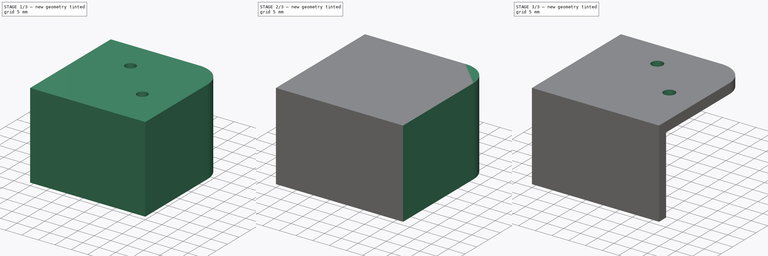
[diagram: build sequence overview — one tinted view per stage of 3, left to right]
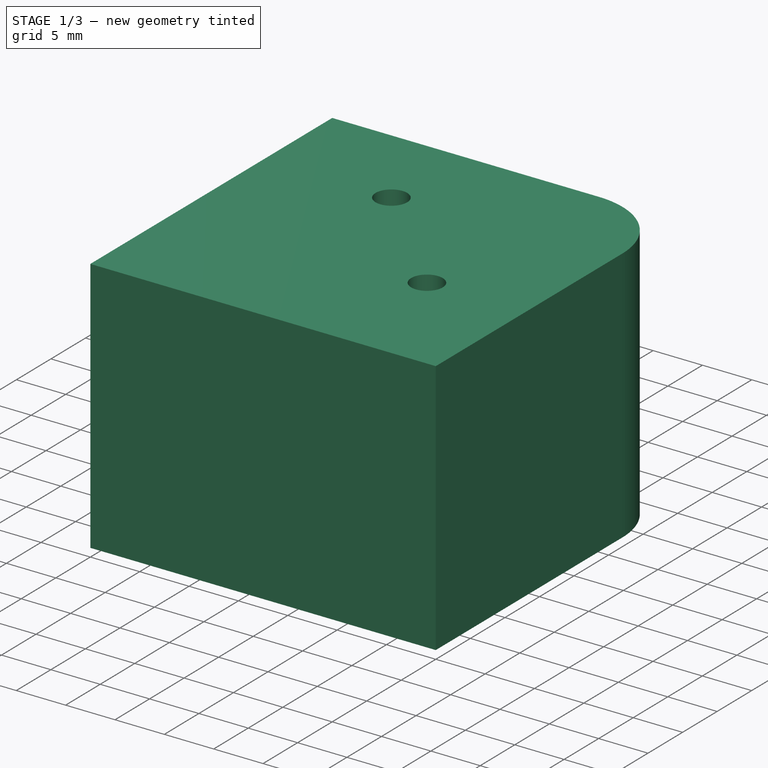
[diagram: stage 1 of 3 — iso view after this stage's code; geometry added in this stage tinted green]
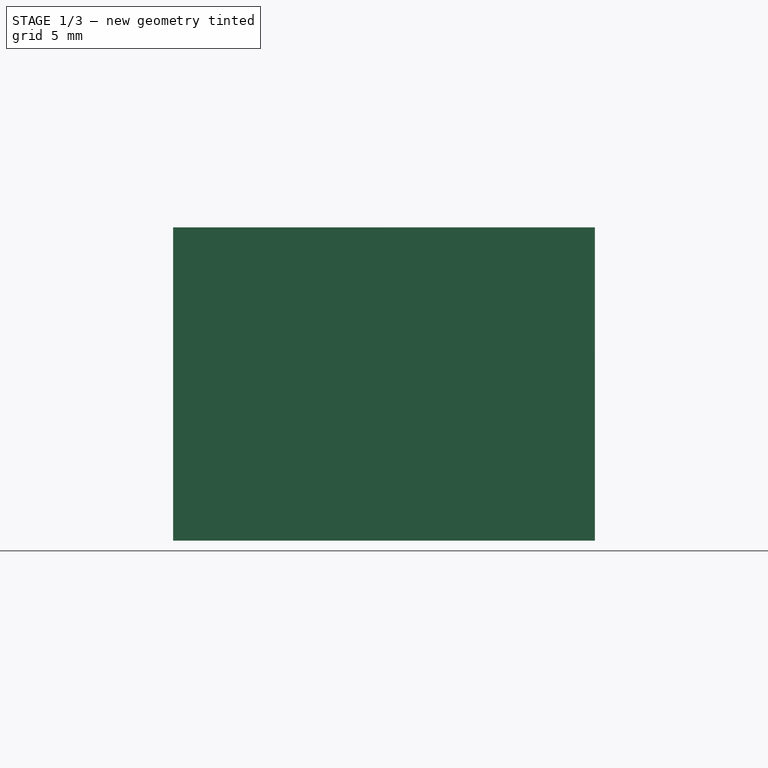
[diagram: stage 1 of 3 — front view after this stage's code; geometry added in this stage tinted green]
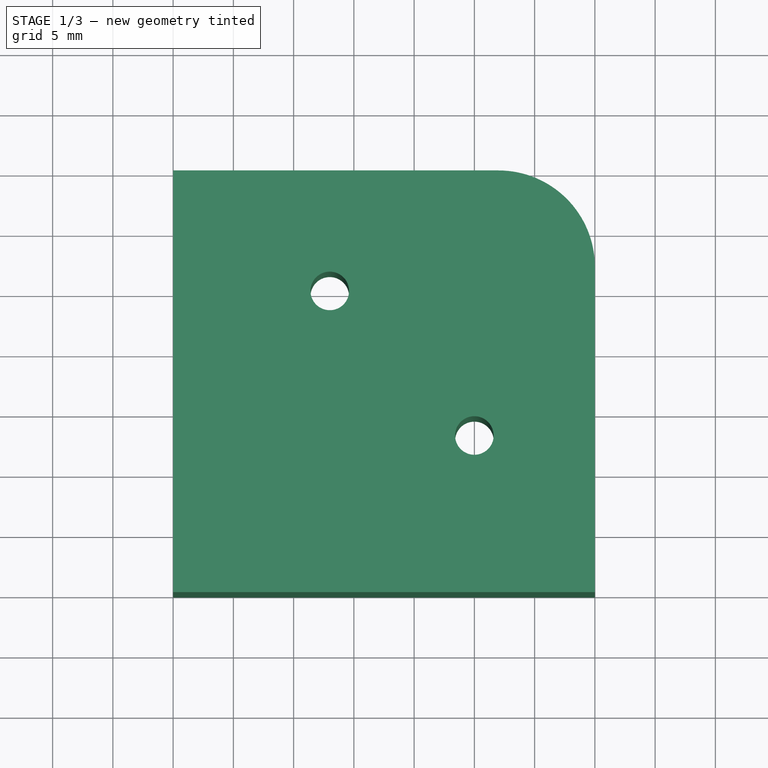
[diagram: stage 1 of 3 — top view after this stage's code; geometry added in this stage tinted green]
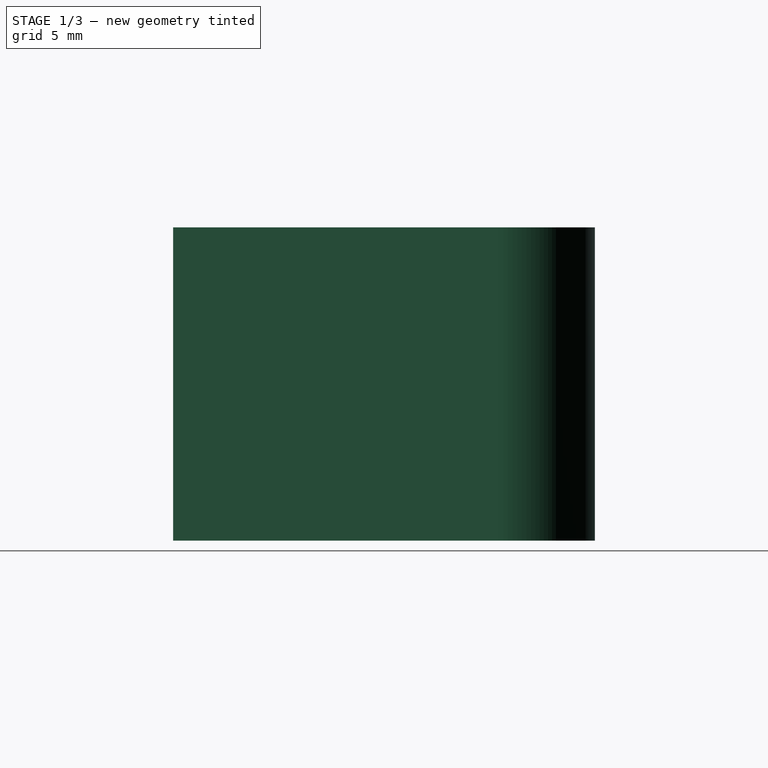
[diagram: stage 1 of 3 — right view after this stage's code; geometry added in this stage tinted green]
FCSTD DOCUMENT  (FreeCAD 0.20R29603 (Git))
Label: GabaritoFurosCantos_BKP
License: All rights reserved
LicenseURL: http://en.wikipedia.org/wiki/All_rights_reserved
objects: Sketcher::SketchObject×5, PartDesign::Pad×3, PartDesign::Body×3, PartDesign::Fillet×2, PartDesign::Pocket×2, Spreadsheet::Sheet×1, PartDesign::Boolean×1, PartDesign::SubShapeBinder×1
note: 24 computed .brp shape members not serialized (recipe doc carries the construction recipe); baked Part::Feature solids carry a one-line shape summary decoded from their .brp

FEATURE [Sketcher::SketchObject] Sketch002
  FullyConstrained = true
  MapMode = 5
  Support = -> [XY_Plane002]
  sketch-geometry (4):
    g0: LineSegment StartX=0 StartY=35 StartZ=0 EndX=35 EndY=35 EndZ=0
    g1: LineSegment StartX=35 StartY=35 StartZ=0 EndX=35 EndY=0 EndZ=0
    g2: LineSegment StartX=35 StartY=0 StartZ=0 EndX=0 EndY=0 EndZ=0
    g3: LineSegment StartX=0 StartY=0 StartZ=0 EndX=0 EndY=35 EndZ=0
  constraints (11):
    c: Coincident(g0,g1)
    c: Coincident(g1,g2)
    c: Coincident(g2,g3)
    c: Coincident(g3,g0)
    c: Horizontal(g2)
    c: Vertical(g1)
    c: DistanceY(g2,g0) = 35
    c: DistanceX(g0,g0) = 35
    c: Coincident(g2,g-1)
    c: Vertical(g3)
    c: Horizontal(g0)
FEATURE [PartDesign::Pad] Pad002
  Direction = (0,0,1)
  Length = 26
  Length2 = 10
  Profile = -> Sketch002
  ReferenceAxis = -> Sketch002 [N_Axis]
  Type = 0
FEATURE [Sketcher::SketchObject] Sketch003
  FullyConstrained = true
  MapMode = 5
  Placement = pos=(0,0,26) rot=(0,0,1;0rad)
  Support = -> [Pad002]
  sketch-geometry (2):
    g0: Circle CenterX=25 CenterY=13 CenterZ=0 NormalX=0 NormalY=0 NormalZ=1 AngleXU=0 Radius=1.6
    g1: Circle CenterX=13 CenterY=25 CenterZ=0 NormalX=0 NormalY=0 NormalZ=1 AngleXU=0 Radius=1.6
  constraints (6):
    c: DistanceX(g-1,g0) = 25
    c: DistanceY(g-1,g0) = 13
    c: DistanceY(g-1,g1) = 25
    c: DistanceX(g-1,g1) = 13
    c: Equal(g0,g1)
    c: Diameter(g0) = 3.2
FEATURE [PartDesign::Pocket] Pocket
  BaseFeature = -> Pad002
  Direction = (0,0,-1)
  Length = 5
  Length2 = 5
  Profile = -> Sketch003
  ReferenceAxis = -> Sketch003 [N_Axis]
  Type = 1
FEATURE [PartDesign::Fillet] Fillet
  Base = -> Pocket [Edge2]
  BaseFeature = -> Pocket
  Radius = 8
  SupportTransform = false
  UseAllEdges = false
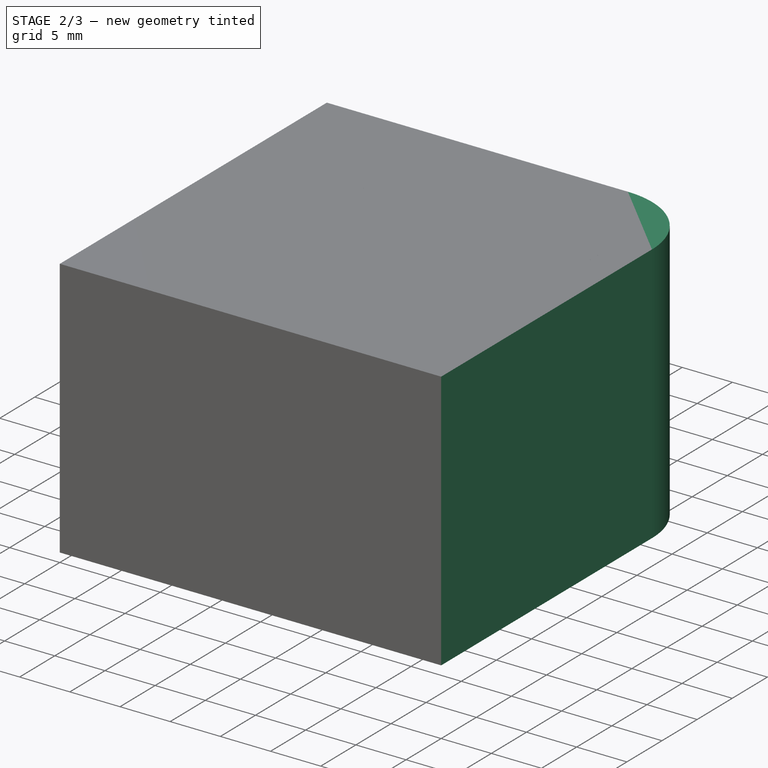
[diagram: stage 2 of 3 — iso view after this stage's code; geometry added in this stage tinted green]
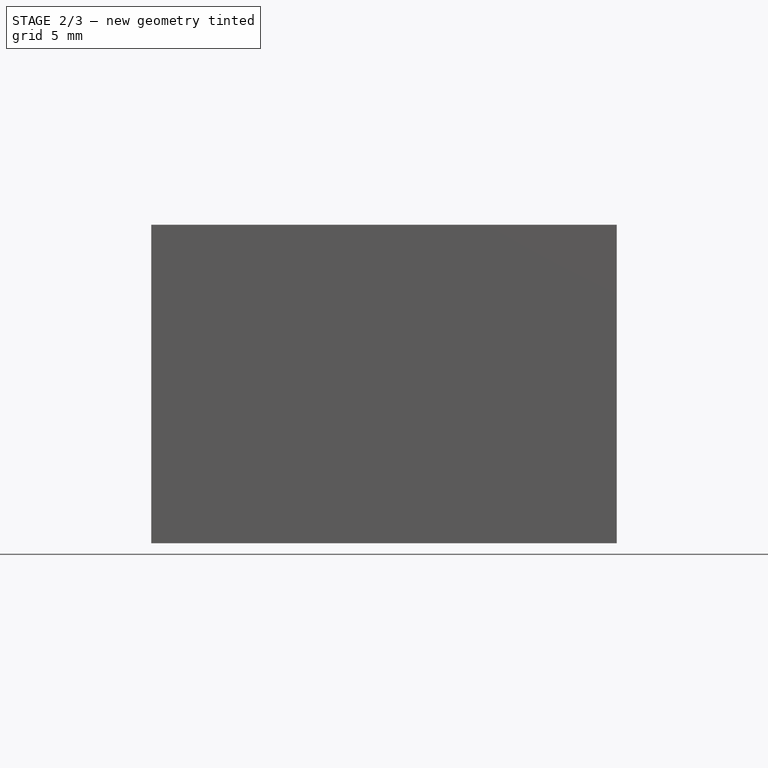
[diagram: stage 2 of 3 — front view after this stage's code; geometry added in this stage tinted green]
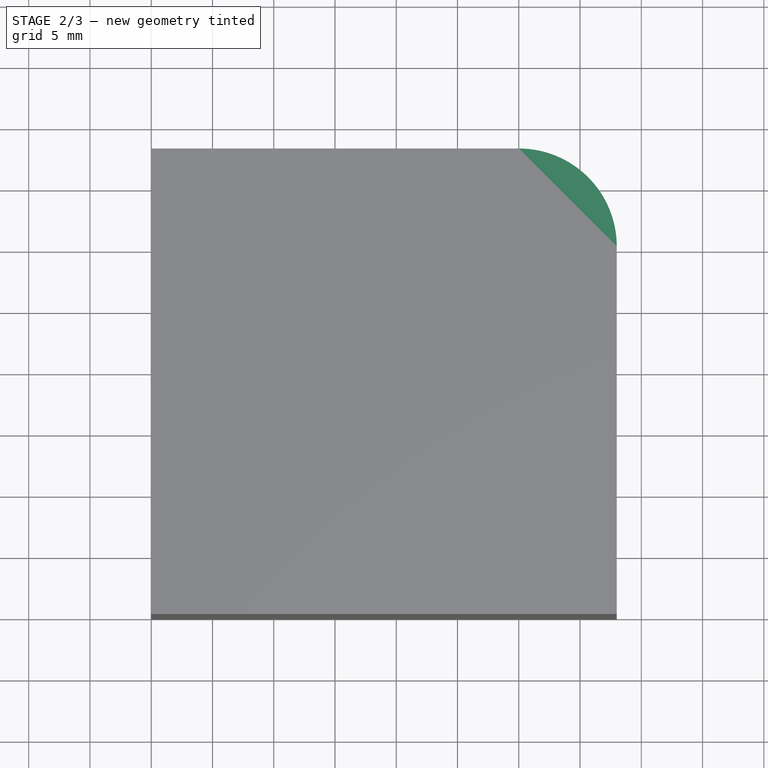
[diagram: stage 2 of 3 — top view after this stage's code; geometry added in this stage tinted green]
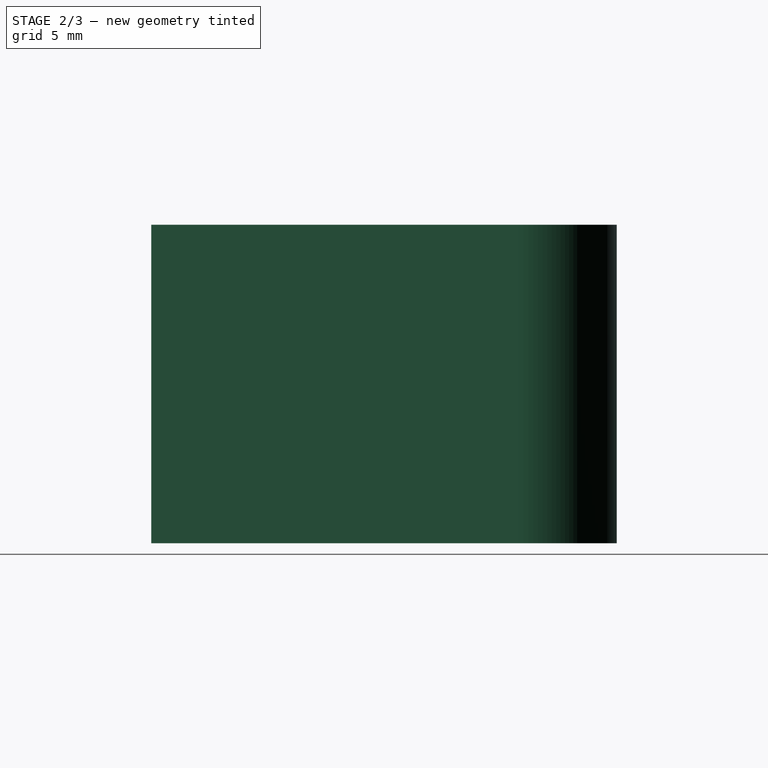
[diagram: stage 2 of 3 — right view after this stage's code; geometry added in this stage tinted green]
FEATURE [Sketcher::SketchObject] Sketch
  FullyConstrained = true
  MapMode = 5
  Support = -> [XY_Plane]
  sketch-geometry (4):
    g0: LineSegment StartX=0 StartY=38 StartZ=0 EndX=38 EndY=38 EndZ=0
    g1: LineSegment StartX=38 StartY=38 StartZ=0 EndX=38 EndY=0 EndZ=0
    g2: LineSegment StartX=38 StartY=0 StartZ=0 EndX=0 EndY=0 EndZ=0
    g3: LineSegment StartX=0 StartY=0 StartZ=0 EndX=0 EndY=38 EndZ=0
  constraints (11):
    c: Coincident(g0,g1)
    c: Coincident(g1,g2)
    c: Coincident(g2,g3)
    c: Coincident(g3,g0)
    c: Horizontal(g2)
    c: Vertical(g1)
    c: DistanceY(g2,g0) = 38
    c: DistanceX(g0,g0) = 38
    c: Coincident(g2,g-1)
    c: Vertical(g3)
    c: Horizontal(g0)
FEATURE [PartDesign::Pad] Pad
  Direction = (0,0,1)
  Length = 26
  Length2 = 10
  Profile = -> Sketch
  ReferenceAxis = -> Sketch [N_Axis]
  Type = 0
FEATURE [PartDesign::Body] Body001  label="Batoque"
  Group = -> [Sketch001,Pad001]
  Origin = -> Origin001
  Placement = pos=(3,3,-3) rot=(0,0,1;0rad)
  Tip = -> Pad001
FEATURE [PartDesign::Fillet] Fillet001
  Base = -> Pad [Edge2]
  BaseFeature = -> Pad
  Radius = 8
  SupportTransform = false
  UseAllEdges = false
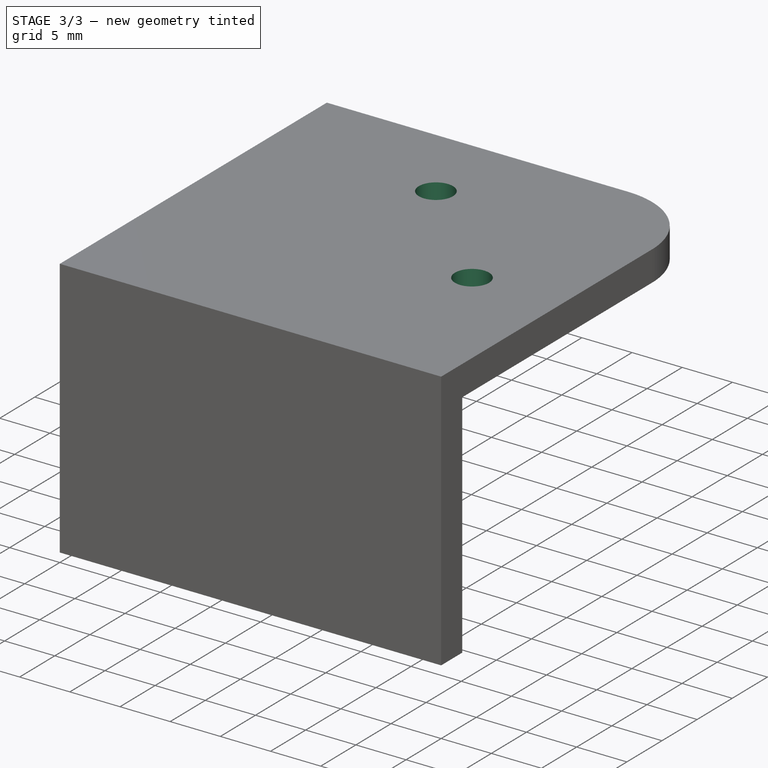
[diagram: stage 3 of 3 — iso view after this stage's code; geometry added in this stage tinted green]
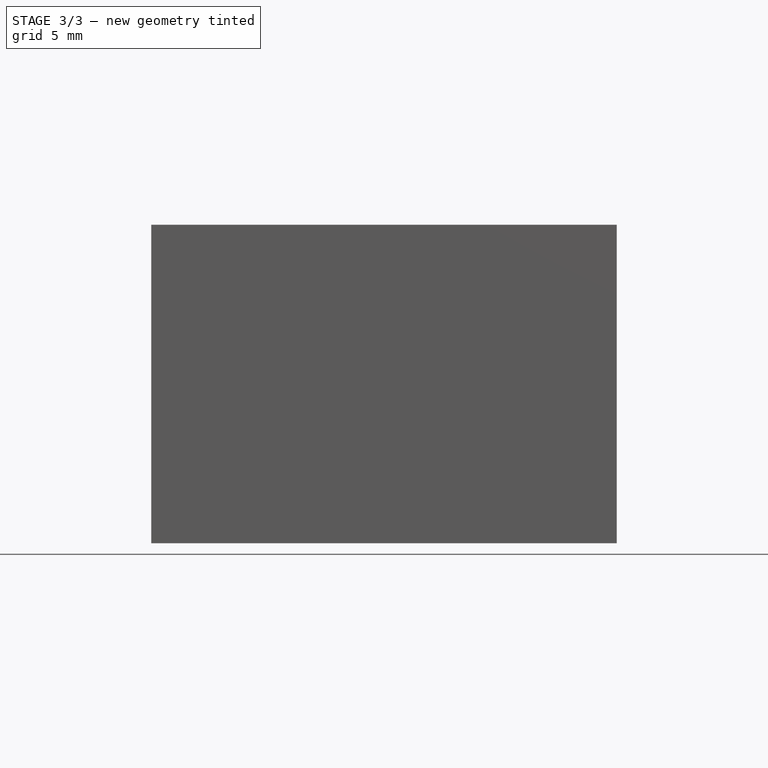
[diagram: stage 3 of 3 — front view after this stage's code; geometry added in this stage tinted green]
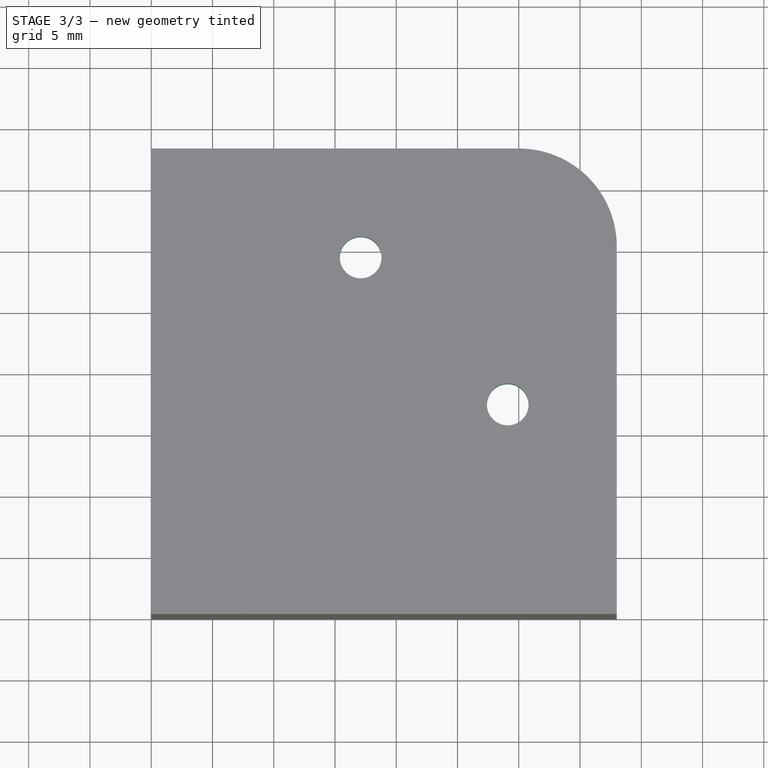
[diagram: stage 3 of 3 — top view after this stage's code; geometry added in this stage tinted green]
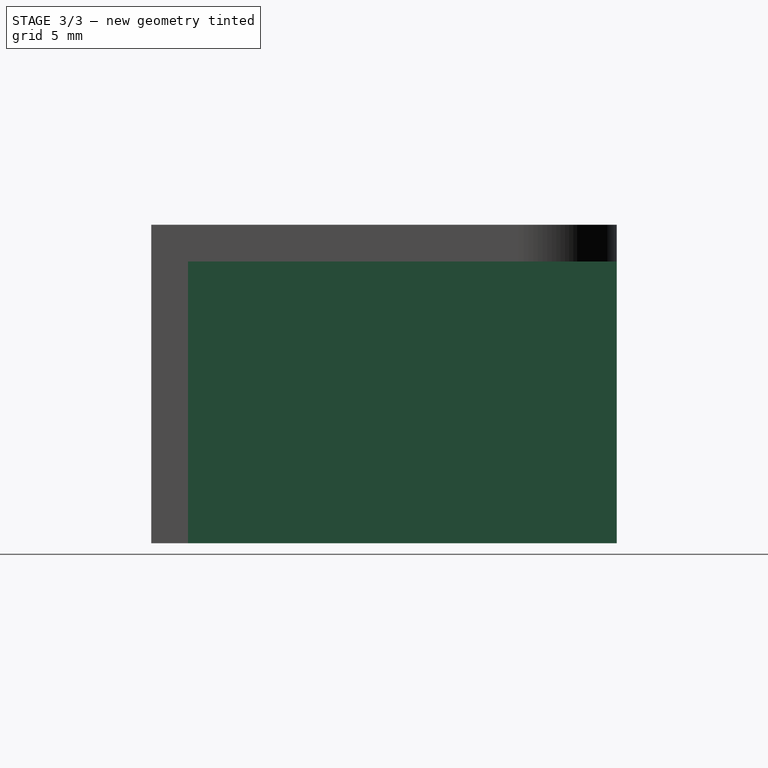
[diagram: stage 3 of 3 — right view after this stage's code; geometry added in this stage tinted green]
FEATURE [Spreadsheet::Sheet] Spreadsheet  label="Params"
  cells = A1=espessura_perfil; B1(espessura_perfil)=1.2; A2=espessura_parede; B2(espessura_parede)=3; A3=batoque_furo1_x; B3(batoque_furo1_x)=10; A4=batoque_furo1_y; B4(batoque_furo1_y)=10; A5=batoque_furo2_x; B5(batoque_furo2_x)=10; A6=batoque_furo2_y; B6(batoque_furo2_y)=10; A7=furo1_x; B7(furo1_x)==B3 - (B2 + 0); A8=furo1_y; B8(furo1_y)==B4 + B2 + 0; A9=furo2_x; B9(furo2_x)==B5 - (B2 + 0); A10=furo2_y; B10(furo2_y)==B6 + B2 + 0; A11=vao_perfil; B11(vao_perfil)=26
FEATURE [Sketcher::SketchObject] Sketch001
  FullyConstrained = true
  MapMode = 5
  Support = -> [XY_Plane001]
  sketch-geometry (4):
    g0: LineSegment StartX=0 StartY=35 StartZ=0 EndX=35 EndY=35 EndZ=0
    g1: LineSegment StartX=35 StartY=35 StartZ=0 EndX=35 EndY=0 EndZ=0
    g2: LineSegment StartX=35 StartY=0 StartZ=0 EndX=0 EndY=0 EndZ=0
    g3: LineSegment StartX=0 StartY=0 StartZ=0 EndX=0 EndY=35 EndZ=0
  constraints (11):
    c: Coincident(g0,g1)
    c: Coincident(g1,g2)
    c: Coincident(g2,g3)
    c: Coincident(g3,g0)
    c: Horizontal(g2)
    c: Vertical(g1)
    c: DistanceY(g2,g0) = 35
    c: DistanceX(g0,g0) = 35
    c: Coincident(g2,g-1)
    c: Vertical(g3)
    c: Horizontal(g0)
FEATURE [PartDesign::Pad] Pad001
  Direction = (0,0,1)
  Length = 26
  Length2 = 10
  Profile = -> Sketch001
  ReferenceAxis = -> Sketch001 [N_Axis]
  Type = 0
  expr: Length = <<Params>>.vao_perfil
FEATURE [PartDesign::Boolean] Boolean
  BaseFeature = -> Fillet001
  Group = -> [Body001]
  Type = 1
FEATURE [PartDesign::Body] Body002  label="Batoque001"
  Group = -> [Sketch002,Pad002,Sketch003,Pocket,Fillet]
  Origin = -> Origin002
  Placement = pos=(4.1,4.1,-4.1) rot=(0,0,1;0rad)
  Tip = -> Fillet
FEATURE [PartDesign::SubShapeBinder] Binder
  BindCopyOnChange = 0
  BindMode = 0
  ClaimChildren = false
  Context = -> Body [Binder.]
  Fuse = false
  MakeFace = true
  OffsetFill = false
  OffsetIntersection = false
  OffsetJoinType = 0
  OffsetOpenResult = false
  PartialLoad = false
  Relative = true
  Support = -> [Body002[Fillet.Face5]]
  _Version = 2
FEATURE [Sketcher::SketchObject] Sketch004
  ExternalGeometry = -> [Binder]
  FullyConstrained = true
  MapMode = 5
  Placement = pos=(0,0,23) rot=(1,0,0;3.14159rad)
  Support = -> [Boolean]
  sketch-geometry (2):
    g0: Circle CenterX=29.1 CenterY=-17.1 CenterZ=0 NormalX=0 NormalY=0 NormalZ=1 AngleXU=0 Radius=1.7
    g1: Circle CenterX=17.1 CenterY=-29.1 CenterZ=0 NormalX=0 NormalY=0 NormalZ=1 AngleXU=0 Radius=1.7
  constraints (4):
    c: Coincident(g0,g-3)
    c: Coincident(g1,g-4)
    c: Equal(g0,g1)
    c: Diameter(g0) = 3.4
FEATURE [PartDesign::Pocket] Pocket001
  BaseFeature = -> Boolean
  Direction = (0,0,1)
  Length = 5
  Length2 = 5
  Profile = -> Sketch004
  ReferenceAxis = -> Sketch004 [N_Axis]
  Type = 1
FEATURE [PartDesign::Body] Body  label="Gabarito"
  Group = -> [Sketch,Pad,Fillet001,Boolean,Binder,Sketch004,Pocket001]
  Origin = -> Origin
  Tip = -> Pocket001
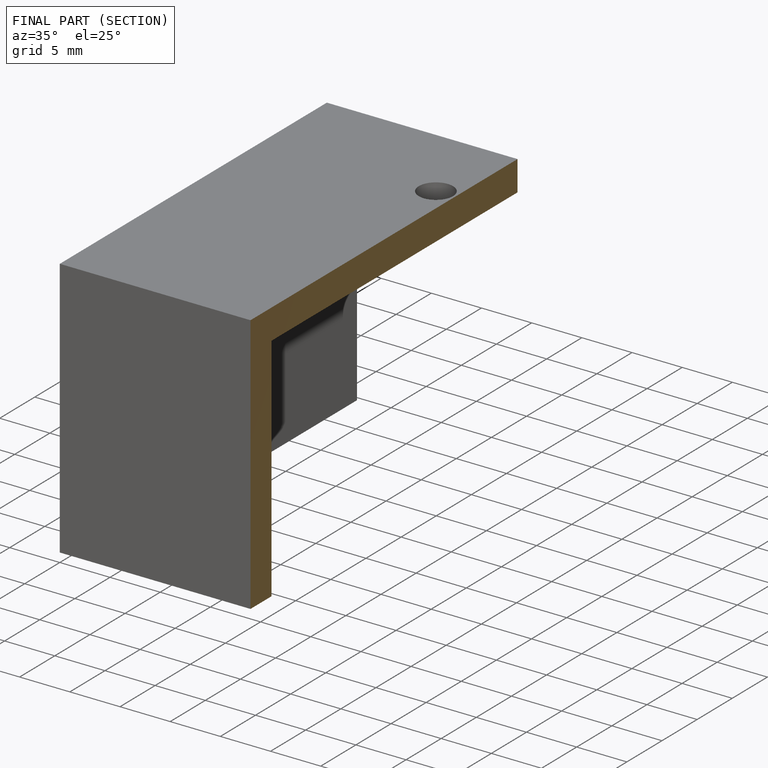
[diagram: finished part — half-section view (interior)]
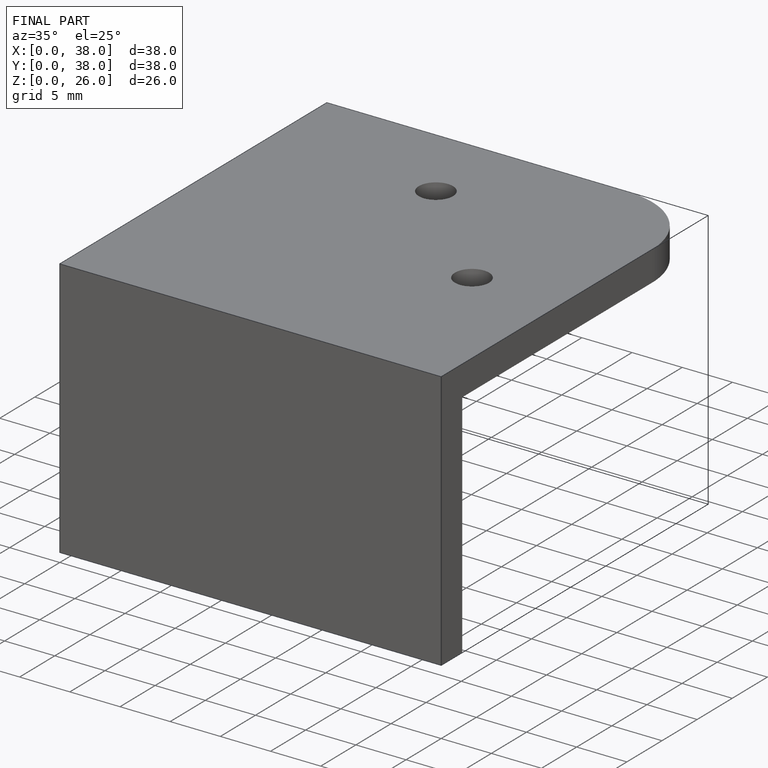
[diagram: finished part — iso view with bounding-box wireframe]
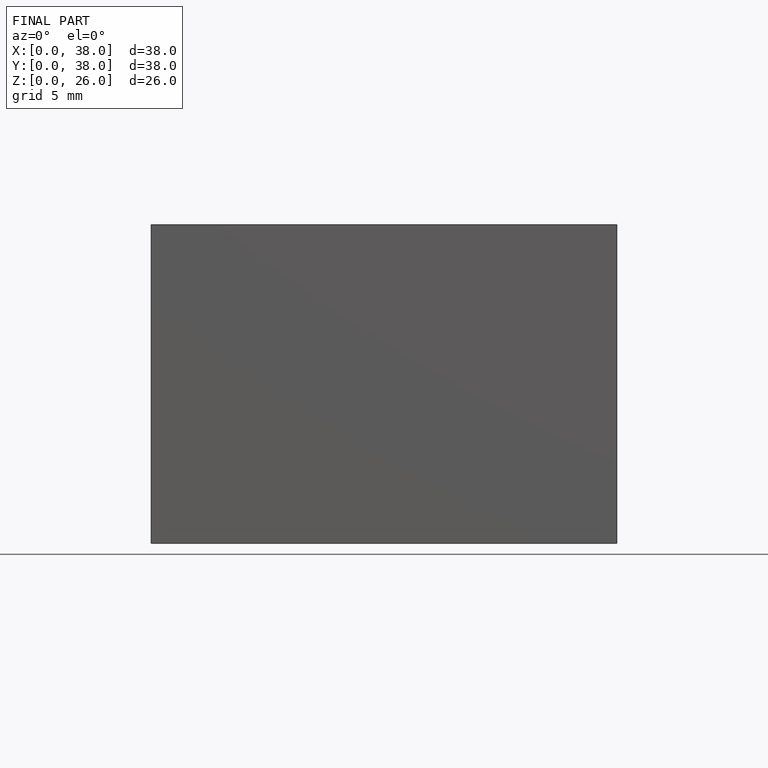
[diagram: finished part — front view with bounding-box wireframe]
